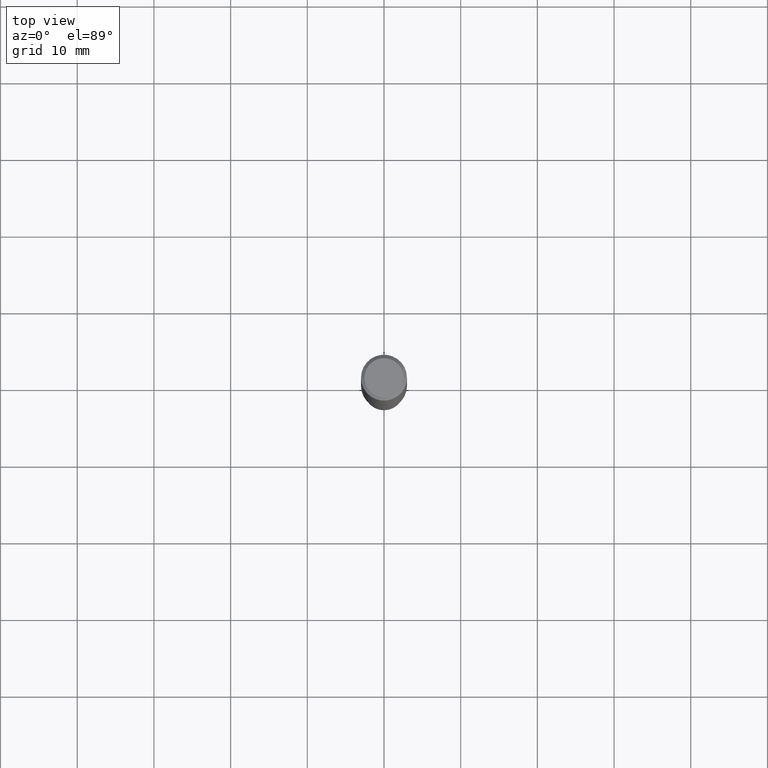
[diagram: clean part render]
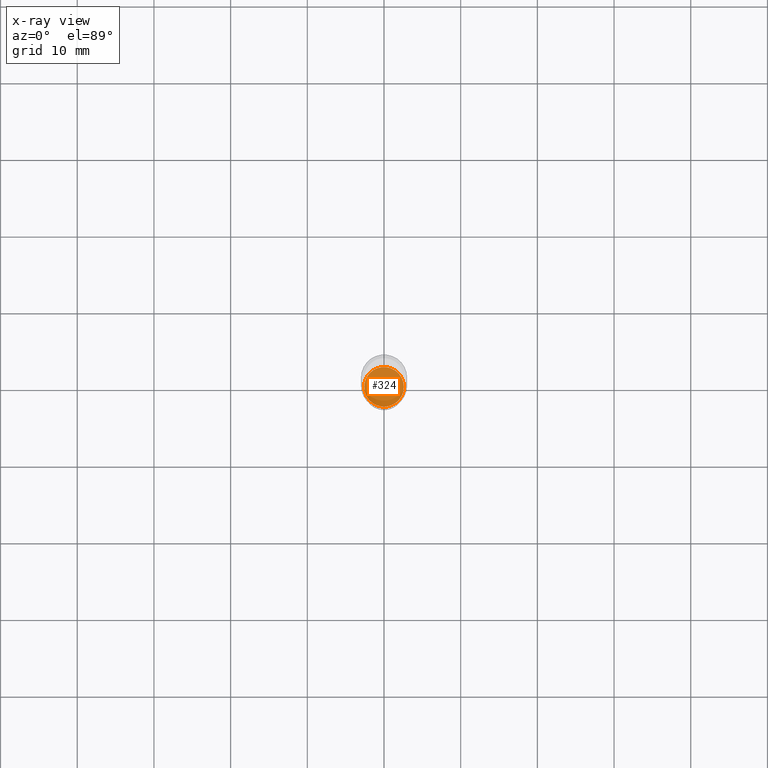
[diagram: x-ray — body ghosted, one internal face saturated and labeled with its STEP entity id]
A machine part, top view, then the same camera in x-ray: the body is ghosted and one INTERNAL B-rep face — a face not visible from any outside direction — is saturated and labeled: STEP entity #324.
In plain terms, the highlighted planar face has unit normal (-0, 0, 1).
Its self-contained STEP definition (entity closure, byte-faithful):
#22 = AXIS2_PLACEMENT_3D ( 'NONE', #218, #182, #209 ) ;
#50 = VERTEX_POINT ( 'NONE', #80 ) ;
#57 = DIRECTION ( 'NONE',  ( 1.000000000000000000, -6.982962677686274599E-15, 0.000000000000000000 ) ) ;
#58 = DIRECTION ( 'NONE',  ( -2.445468806185136597E-29, 3.491481338843145583E-15, 1.000000000000000000 ) ) ;
#80 = CARTESIAN_POINT ( 'NONE',  ( 0.1018499999999999961, -1.026460598806496295E-14, -2.736200000000000188 ) ) ;
#102 = AXIS2_PLACEMENT_3D ( 'NONE', #174, #58, #57 ) ;
#154 = EDGE_CURVE ( 'NONE', #50, #158, #314, .T. ) ;
#155 = ORIENTED_EDGE ( 'NONE', *, *, #154, .F. ) ;
#158 = VERTEX_POINT ( 'NONE', #338 ) ;
#174 = CARTESIAN_POINT ( 'NONE',  ( 6.691291747483770374E-29, -9.553391239342616361E-15, -2.736200000000000188 ) ) ;
#180 = PLANE ( 'NONE',  #293 ) ;
#182 = DIRECTION ( 'NONE',  ( -2.445468806185136597E-29, 3.491481338843145583E-15, 1.000000000000000000 ) ) ;
#209 = DIRECTION ( 'NONE',  ( 1.000000000000000000, -6.982962677686274599E-15, 0.000000000000000000 ) ) ;
#212 = EDGE_LOOP ( 'NONE', ( #155, #298 ) ) ;
#218 = CARTESIAN_POINT ( 'NONE',  ( 6.691291747483770374E-29, -9.553391239342616361E-15, -2.736200000000000188 ) ) ;
#259 = CIRCLE ( 'NONE', #22, 0.1018499999999999961 ) ;
#286 = EDGE_CURVE ( 'NONE', #158, #50, #259, .T. ) ;
#293 = AXIS2_PLACEMENT_3D ( 'NONE', #464, #321, #388 ) ;
#298 = ORIENTED_EDGE ( 'NONE', *, *, #286, .F. ) ;
#314 = CIRCLE ( 'NONE', #102, 0.1018499999999999961 ) ;
#321 = DIRECTION ( 'NONE',  ( -2.438088387897960049E-29, 3.491481338843145188E-15, 1.000000000000000000 ) ) ;
#324 = ADVANCED_FACE ( 'NONE', ( #392 ), #180, .F. ) ;
#338 = CARTESIAN_POINT ( 'NONE',  ( -0.1018499999999999961, -8.827054235796842359E-15, -2.736200000000000188 ) ) ;
#388 = DIRECTION ( 'NONE',  ( 1.000000000000000000, -6.982962677686265922E-15, 4.876176775795935793E-29 ) ) ;
#392 = FACE_OUTER_BOUND ( 'NONE', #212, .T. ) ;
#464 = CARTESIAN_POINT ( 'NONE',  ( 6.691291747483770374E-29, -9.553391239342616361E-15, -2.736200000000000188 ) ) ;